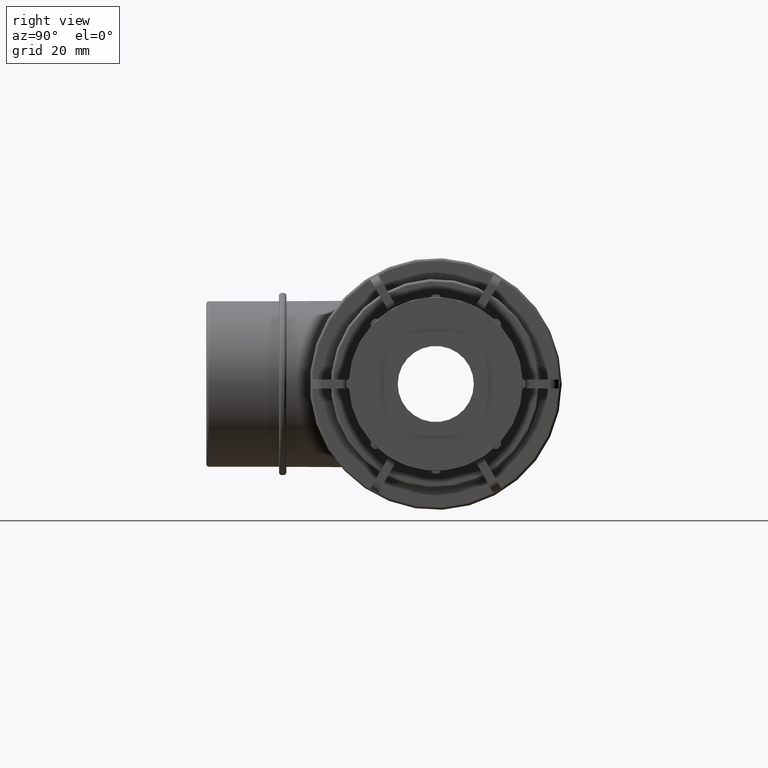
[diagram: clean part render]
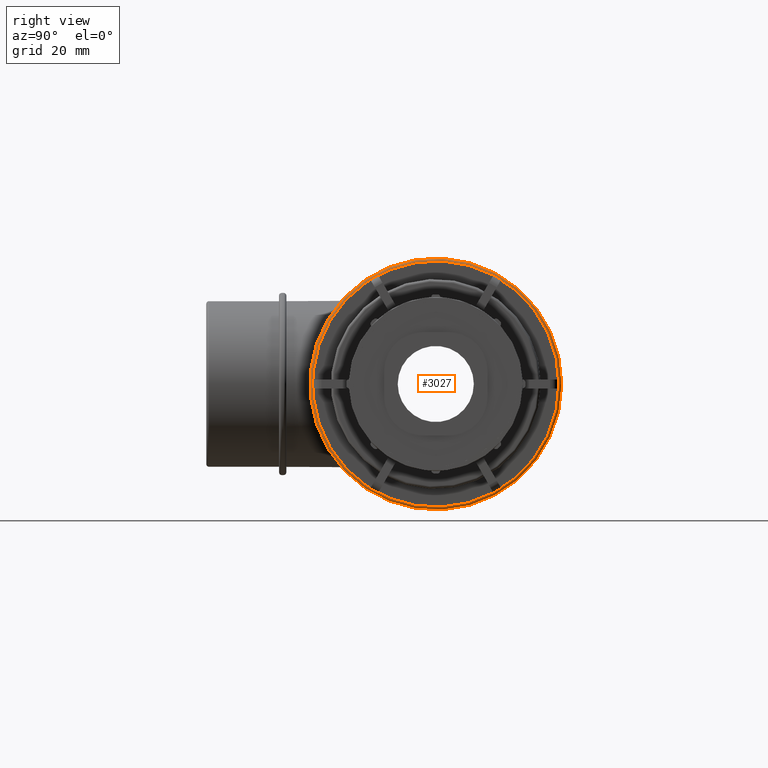
[diagram: same view with one face highlighted and labeled with its STEP entity id]
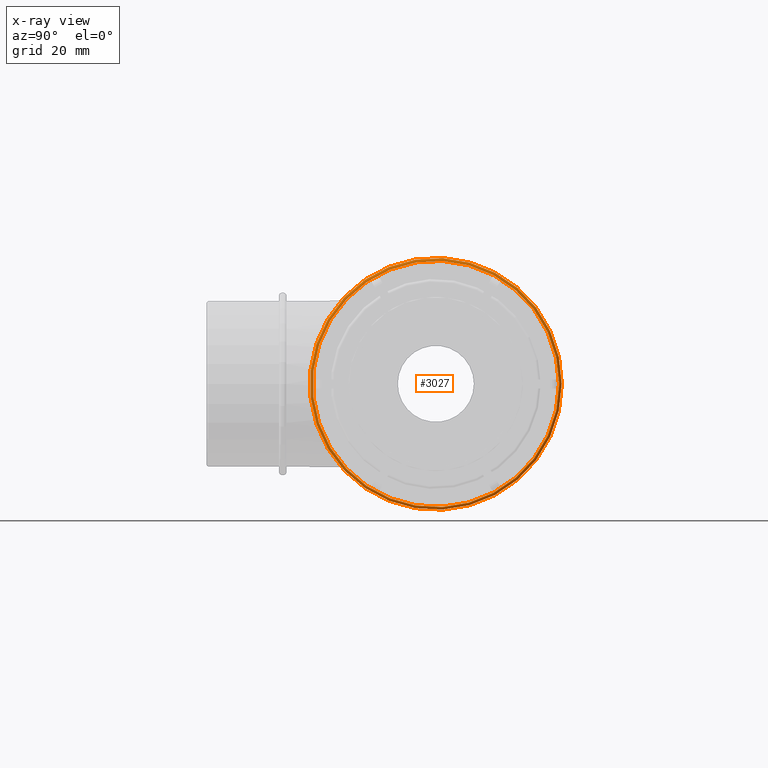
[diagram: x-ray of the same camera — body ghosted, the highlighted face saturated]
A machine part, right view. The second image highlights one B-rep face of the part: STEP entity #3027.
The next image is the same camera in x-ray: the body ghosted, the highlighted face saturated — about 0% of this face is hidden behind the body in this view.
In plain terms, the highlighted toroidal blend (fillet) surface has major radius 44 mm and minor (blend) radius 1 mm.
Its self-contained STEP definition (entity closure, byte-faithful):
#532=CIRCLE('',#3269,45.);
#533=CIRCLE('',#3271,44.);
#724=TOROIDAL_SURFACE('',#3270,44.,1.);
#761=FACE_BOUND('',#1056,.T.);
#820=FACE_OUTER_BOUND('',#1055,.T.);
#1055=EDGE_LOOP('',(#2109));
#1056=EDGE_LOOP('',(#2110));
#1357=VERTEX_POINT('',#4763);
#1358=VERTEX_POINT('',#4766);
#1651=EDGE_CURVE('',#1357,#1357,#532,.T.);
#1652=EDGE_CURVE('',#1358,#1358,#533,.T.);
#2109=ORIENTED_EDGE('',*,*,#1651,.T.);
#2110=ORIENTED_EDGE('',*,*,#1652,.T.);
#3027=ADVANCED_FACE('',(#820,#761),#724,.T.);
#3269=AXIS2_PLACEMENT_3D('',#4764,#3696,#3697);
#3270=AXIS2_PLACEMENT_3D('',#4765,#3698,#3699);
#3271=AXIS2_PLACEMENT_3D('',#4767,#3700,#3701);
#3696=DIRECTION('center_axis',(1.,0.,0.));
#3697=DIRECTION('ref_axis',(0.,-1.,1.83697019872103E-16));
#3698=DIRECTION('center_axis',(1.,0.,0.));
#3699=DIRECTION('ref_axis',(0.,0.,-1.));
#3700=DIRECTION('center_axis',(-1.,0.,0.));
#3701=DIRECTION('ref_axis',(0.,-1.,1.83697019872103E-16));
#4763=CARTESIAN_POINT('',(50.2,45.,-2.75545529808154E-15));
#4764=CARTESIAN_POINT('Origin',(50.2,0.,0.));
#4765=CARTESIAN_POINT('Origin',(50.2,0.,0.));
#4766=CARTESIAN_POINT('',(51.2,44.,-1.34711147906209E-14));
#4767=CARTESIAN_POINT('Origin',(51.2,0.,0.));